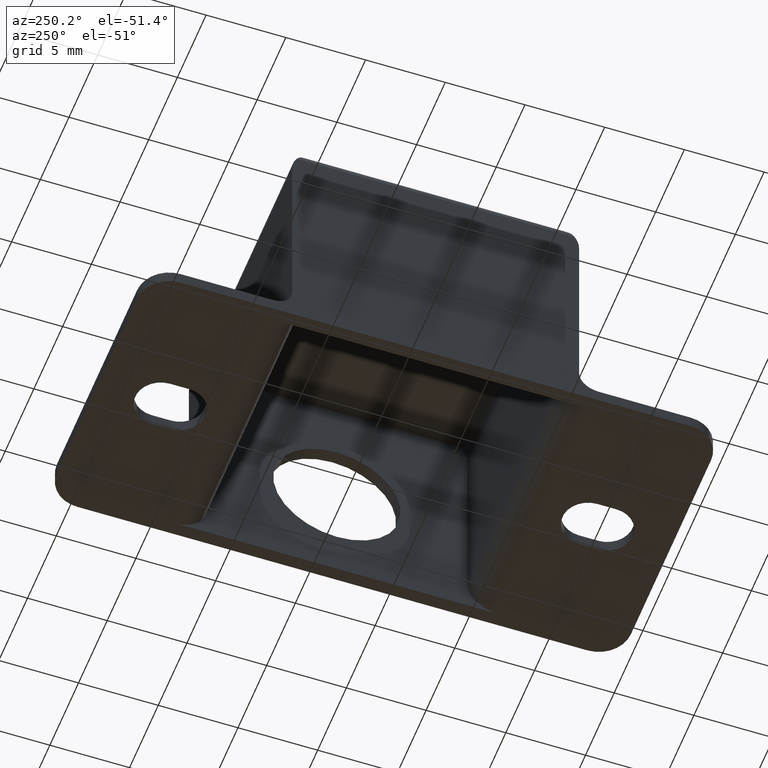
[diagram: clean part render]
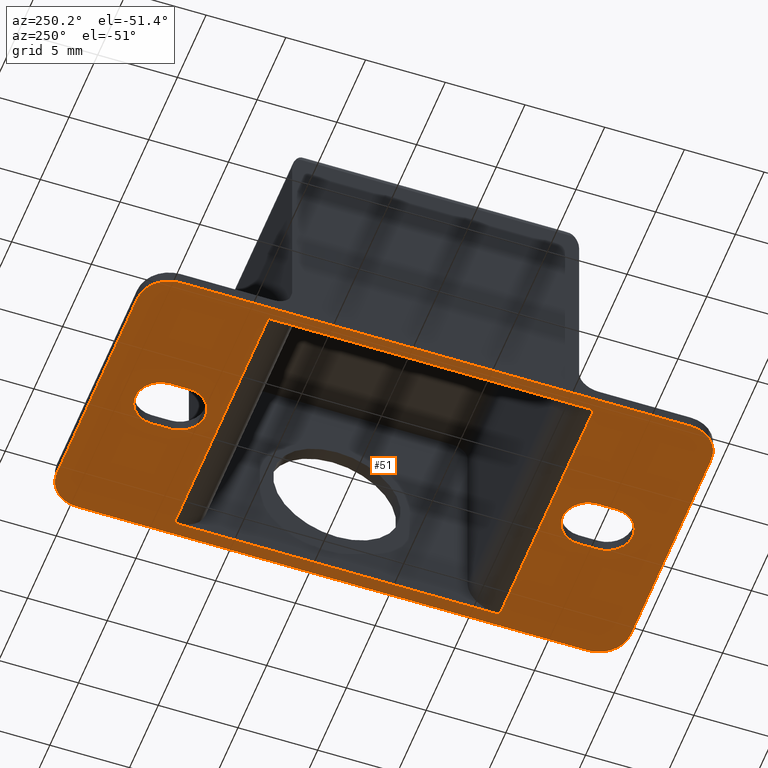
[diagram: same view with one face highlighted and labeled with its STEP entity id]
A machine part, auxiliary view. The second image highlights one B-rep face of the part: STEP entity #51.
In plain terms, the highlighted planar face has unit normal (0, 0, -1).
Its self-contained STEP definition (entity closure, byte-faithful):
#51=ADVANCED_FACE('',(#191,#192,#193,#194),#190,.T.);
#190=PLANE('',#535);
#191=FACE_OUTER_BOUND('',#536,.T.);
#192=FACE_BOUND('',#537,.T.);
#193=FACE_BOUND('',#538,.T.);
#194=FACE_BOUND('',#539,.T.);
#532=CARTESIAN_POINT('',(1.98000000000E+01,-8.20000000000E+00,-8.00000000000E-01));
#533=DIRECTION('',(0.00000000000E+00,0.00000000000E+00,-1.00000000000E+00));
#534=DIRECTION('',(-1.00000000000E+00,0.00000000000E+00,0.00000000000E+00));
#535=AXIS2_PLACEMENT_3D('',#532,#533,#534);
#536=EDGE_LOOP('',(#744,#745,#746,#747,#748,#749,#750,#751));
#537=EDGE_LOOP('',(#752,#753,#754,#755));
#538=EDGE_LOOP('',(#756,#757,#758,#759));
#539=EDGE_LOOP('',(#760,#761,#762,#763));
#744=ORIENTED_EDGE('',*,*,#944,.T.);
#745=ORIENTED_EDGE('',*,*,#921,.T.);
#746=ORIENTED_EDGE('',*,*,#928,.F.);
#747=ORIENTED_EDGE('',*,*,#911,.T.);
#748=ORIENTED_EDGE('',*,*,#943,.F.);
#749=ORIENTED_EDGE('',*,*,#915,.T.);
#750=ORIENTED_EDGE('',*,*,#936,.T.);
#751=ORIENTED_EDGE('',*,*,#917,.T.);
#752=ORIENTED_EDGE('',*,*,#945,.F.);
#753=ORIENTED_EDGE('',*,*,#946,.F.);
#754=ORIENTED_EDGE('',*,*,#947,.F.);
#755=ORIENTED_EDGE('',*,*,#948,.F.);
#756=ORIENTED_EDGE('',*,*,#949,.F.);
#757=ORIENTED_EDGE('',*,*,#950,.F.);
#758=ORIENTED_EDGE('',*,*,#951,.F.);
#759=ORIENTED_EDGE('',*,*,#952,.F.);
#760=ORIENTED_EDGE('',*,*,#953,.F.);
#761=ORIENTED_EDGE('',*,*,#954,.F.);
#762=ORIENTED_EDGE('',*,*,#955,.T.);
#763=ORIENTED_EDGE('',*,*,#956,.T.);
#911=EDGE_CURVE('',#1119,#1112,#1120,.T.);
#915=EDGE_CURVE('',#1147,#1140,#1148,.T.);
#917=EDGE_CURVE('',#1160,#1161,#1162,.T.);
#921=EDGE_CURVE('',#1188,#1189,#1190,.T.);
#928=EDGE_CURVE('',#1119,#1189,#1236,.T.);
#936=EDGE_CURVE('',#1140,#1160,#1288,.T.);
#943=EDGE_CURVE('',#1147,#1112,#1334,.T.);
#944=EDGE_CURVE('',#1161,#1188,#1340,.T.);
#945=EDGE_CURVE('',#1346,#1347,#1348,.T.);
#946=EDGE_CURVE('',#1354,#1346,#1355,.T.);
#947=EDGE_CURVE('',#1361,#1354,#1362,.T.);
#948=EDGE_CURVE('',#1347,#1361,#1368,.T.);
#949=EDGE_CURVE('',#1374,#1375,#1376,.T.);
#950=EDGE_CURVE('',#1382,#1374,#1383,.T.);
#951=EDGE_CURVE('',#1389,#1382,#1390,.T.);
#952=EDGE_CURVE('',#1375,#1389,#1396,.T.);
#953=EDGE_CURVE('',#1402,#1403,#1404,.T.);
#954=EDGE_CURVE('',#1410,#1402,#1411,.T.);
#955=EDGE_CURVE('',#1410,#1417,#1418,.T.);
#956=EDGE_CURVE('',#1417,#1403,#1424,.T.);
#1112=VERTEX_POINT('',#1817);
#1119=VERTEX_POINT('',#1821);
#1120=CIRCLE('',#1825,2.00000000000E+00);
#1140=VERTEX_POINT('',#1835);
#1147=VERTEX_POINT('',#1839);
#1148=CIRCLE('',#1843,2.00000000000E+00);
#1160=VERTEX_POINT('',#1847);
#1161=VERTEX_POINT('',#1848);
#1162=CIRCLE('',#1852,2.00000000000E+00);
#1188=VERTEX_POINT('',#1865);
#1189=VERTEX_POINT('',#1866);
#1190=CIRCLE('',#1870,2.00000000000E+00);
#1236=LINE('',#1895,#1896);
#1288=LINE('',#1925,#1926);
#1334=LINE('',#1953,#1954);
#1340=LINE('',#1956,#1957);
#1346=VERTEX_POINT('',#1959);
#1347=VERTEX_POINT('',#1960);
#1348=LINE('',#1961,#1962);
#1354=VERTEX_POINT('',#1964);
#1355=CIRCLE('',#1968,1.60000000000E+00);
#1361=VERTEX_POINT('',#1969);
#1362=LINE('',#1970,#1971);
#1368=CIRCLE('',#1976,1.60000000000E+00);
#1374=VERTEX_POINT('',#1977);
#1375=VERTEX_POINT('',#1978);
#1376=LINE('',#1979,#1980);
#1382=VERTEX_POINT('',#1982);
#1383=CIRCLE('',#1986,1.60000000000E+00);
#1389=VERTEX_POINT('',#1987);
#1390=LINE('',#1988,#1989);
#1396=CIRCLE('',#1994,1.60000000000E+00);
#1402=VERTEX_POINT('',#1995);
#1403=VERTEX_POINT('',#1996);
#1404=LINE('',#1997,#1998);
#1410=VERTEX_POINT('',#2000);
#1411=LINE('',#2001,#2002);
#1417=VERTEX_POINT('',#2004);
#1418=LINE('',#2005,#2006);
#1424=LINE('',#2008,#2009);
#1817=CARTESIAN_POINT('',(2.00000000000E+00,3.14000000000E+01,-8.00000000000E-01));
#1821=CARTESIAN_POINT('',(0.00000000000E+00,2.94000000000E+01,-8.00000000000E-01));
#1822=CARTESIAN_POINT('',(2.00000000000E+00,2.94000000000E+01,-8.00000000000E-01));
#1823=DIRECTION('',(0.00000000000E+00,0.00000000000E+00,-1.00000000000E+00));
#1824=DIRECTION('',(1.00000000000E+00,-0.00000000000E+00,-0.00000000000E+00));
#1825=AXIS2_PLACEMENT_3D('',#1822,#1823,#1824);
#1835=CARTESIAN_POINT('',(1.80000000000E+01,2.94000000000E+01,-8.00000000000E-01));
#1839=CARTESIAN_POINT('',(1.60000000000E+01,3.14000000000E+01,-8.00000000000E-01));
#1840=CARTESIAN_POINT('',(1.60000000000E+01,2.94000000000E+01,-8.00000000000E-01));
#1841=DIRECTION('',(0.00000000000E+00,0.00000000000E+00,-1.00000000000E+00));
#1842=DIRECTION('',(1.00000000000E+00,-0.00000000000E+00,-0.00000000000E+00));
#1843=AXIS2_PLACEMENT_3D('',#1840,#1841,#1842);
#1847=CARTESIAN_POINT('',(1.80000000000E+01,-2.60000000000E+00,-8.00000000000E-01));
#1848=CARTESIAN_POINT('',(1.60000000000E+01,-4.60000000000E+00,-8.00000000000E-01));
#1849=CARTESIAN_POINT('',(1.60000000000E+01,-2.60000000000E+00,-8.00000000000E-01));
#1850=DIRECTION('',(0.00000000000E+00,0.00000000000E+00,-1.00000000000E+00));
#1851=DIRECTION('',(1.00000000000E+00,-0.00000000000E+00,-0.00000000000E+00));
#1852=AXIS2_PLACEMENT_3D('',#1849,#1850,#1851);
#1865=CARTESIAN_POINT('',(2.00000000000E+00,-4.60000000000E+00,-8.00000000000E-01));
#1866=CARTESIAN_POINT('',(0.00000000000E+00,-2.60000000000E+00,-8.00000000000E-01));
#1867=CARTESIAN_POINT('',(2.00000000000E+00,-2.60000000000E+00,-8.00000000000E-01));
#1868=DIRECTION('',(0.00000000000E+00,0.00000000000E+00,-1.00000000000E+00));
#1869=DIRECTION('',(1.00000000000E+00,-0.00000000000E+00,-0.00000000000E+00));
#1870=AXIS2_PLACEMENT_3D('',#1867,#1868,#1869);
#1895=CARTESIAN_POINT('',(0.00000000000E+00,2.94000000000E+01,-8.00000000000E-01));
#1896=VECTOR('',#1897,3.20000000000E+01);
#1897=DIRECTION('',(0.00000000000E+00,-1.00000000000E+00,0.00000000000E+00));
#1925=CARTESIAN_POINT('',(1.80000000000E+01,2.94000000000E+01,-8.00000000000E-01));
#1926=VECTOR('',#1927,3.20000000000E+01);
#1927=DIRECTION('',(0.00000000000E+00,-1.00000000000E+00,0.00000000000E+00));
#1953=CARTESIAN_POINT('',(1.60000000000E+01,3.14000000000E+01,-8.00000000000E-01));
#1954=VECTOR('',#1955,1.40000000000E+01);
#1955=DIRECTION('',(-1.00000000000E+00,0.00000000000E+00,0.00000000000E+00));
#1956=CARTESIAN_POINT('',(1.60000000000E+01,-4.60000000000E+00,-8.00000000000E-01));
#1957=VECTOR('',#1958,1.40000000000E+01);
#1958=DIRECTION('',(-1.00000000000E+00,0.00000000000E+00,0.00000000000E+00));
#1959=CARTESIAN_POINT('',(1.06000000000E+01,6.00000000000E-01,-8.00000000000E-01));
#1960=CARTESIAN_POINT('',(1.06000000000E+01,-6.00000000000E-01,-8.00000000000E-01));
#1961=CARTESIAN_POINT('',(1.06000000000E+01,6.00000000000E-01,-8.00000000000E-01));
#1962=VECTOR('',#1963,1.20000000000E+00);
#1963=DIRECTION('',(0.00000000000E+00,-1.00000000000E+00,0.00000000000E+00));
#1964=CARTESIAN_POINT('',(7.40000000000E+00,6.00000000000E-01,-8.00000000000E-01));
#1965=CARTESIAN_POINT('',(9.00000000000E+00,6.00000000000E-01,-8.00000000000E-01));
#1966=DIRECTION('',(0.00000000000E+00,0.00000000000E+00,-1.00000000000E+00));
#1967=DIRECTION('',(-1.00000000000E+00,-0.00000000000E+00,-0.00000000000E+00));
#1968=AXIS2_PLACEMENT_3D('',#1965,#1966,#1967);
#1969=CARTESIAN_POINT('',(7.40000000000E+00,-6.00000000000E-01,-8.00000000000E-01));
#1970=CARTESIAN_POINT('',(7.40000000000E+00,-6.00000000000E-01,-8.00000000000E-01));
#1971=VECTOR('',#1972,1.20000000000E+00);
#1972=DIRECTION('',(0.00000000000E+00,1.00000000000E+00,0.00000000000E+00));
#1973=CARTESIAN_POINT('',(9.00000000000E+00,-6.00000000000E-01,-8.00000000000E-01));
#1974=DIRECTION('',(0.00000000000E+00,0.00000000000E+00,-1.00000000000E+00));
#1975=DIRECTION('',(-1.00000000000E+00,-0.00000000000E+00,-0.00000000000E+00));
#1976=AXIS2_PLACEMENT_3D('',#1973,#1974,#1975);
#1977=CARTESIAN_POINT('',(7.40000000000E+00,2.62000000000E+01,-8.00000000000E-01));
#1978=CARTESIAN_POINT('',(7.40000000000E+00,2.74000000000E+01,-8.00000000000E-01));
#1979=CARTESIAN_POINT('',(7.40000000000E+00,2.62000000000E+01,-8.00000000000E-01));
#1980=VECTOR('',#1981,1.20000000000E+00);
#1981=DIRECTION('',(0.00000000000E+00,1.00000000000E+00,0.00000000000E+00));
#1982=CARTESIAN_POINT('',(1.06000000000E+01,2.62000000000E+01,-8.00000000000E-01));
#1983=CARTESIAN_POINT('',(9.00000000000E+00,2.62000000000E+01,-8.00000000000E-01));
#1984=DIRECTION('',(0.00000000000E+00,0.00000000000E+00,-1.00000000000E+00));
#1985=DIRECTION('',(-1.00000000000E+00,-0.00000000000E+00,-0.00000000000E+00));
#1986=AXIS2_PLACEMENT_3D('',#1983,#1984,#1985);
#1987=CARTESIAN_POINT('',(1.06000000000E+01,2.74000000000E+01,-8.00000000000E-01));
#1988=CARTESIAN_POINT('',(1.06000000000E+01,2.74000000000E+01,-8.00000000000E-01));
#1989=VECTOR('',#1990,1.20000000000E+00);
#1990=DIRECTION('',(0.00000000000E+00,-1.00000000000E+00,0.00000000000E+00));
#1991=CARTESIAN_POINT('',(9.00000000000E+00,2.74000000000E+01,-8.00000000000E-01));
#1992=DIRECTION('',(0.00000000000E+00,0.00000000000E+00,-1.00000000000E+00));
#1993=DIRECTION('',(-1.00000000000E+00,-0.00000000000E+00,-0.00000000000E+00));
#1994=AXIS2_PLACEMENT_3D('',#1991,#1992,#1993);
#1995=CARTESIAN_POINT('',(1.72000000000E+01,3.20000000000E+00,-8.00000000000E-01));
#1996=CARTESIAN_POINT('',(8.00000000000E-01,3.20000000000E+00,-8.00000000000E-01));
#1997=CARTESIAN_POINT('',(1.72000000000E+01,3.20000000000E+00,-8.00000000000E-01));
#1998=VECTOR('',#1999,1.64000000000E+01);
#1999=DIRECTION('',(-1.00000000000E+00,0.00000000000E+00,0.00000000000E+00));
#2000=CARTESIAN_POINT('',(1.72000000000E+01,2.36000000000E+01,-8.00000000000E-01));
#2001=CARTESIAN_POINT('',(1.72000000000E+01,2.36000000000E+01,-8.00000000000E-01));
#2002=VECTOR('',#2003,2.04000000000E+01);
#2003=DIRECTION('',(0.00000000000E+00,-1.00000000000E+00,0.00000000000E+00));
#2004=CARTESIAN_POINT('',(8.00000000000E-01,2.36000000000E+01,-8.00000000000E-01));
#2005=CARTESIAN_POINT('',(1.72000000000E+01,2.36000000000E+01,-8.00000000000E-01));
#2006=VECTOR('',#2007,1.64000000000E+01);
#2007=DIRECTION('',(-1.00000000000E+00,0.00000000000E+00,0.00000000000E+00));
#2008=CARTESIAN_POINT('',(8.00000000000E-01,2.36000000000E+01,-8.00000000000E-01));
#2009=VECTOR('',#2010,2.04000000000E+01);
#2010=DIRECTION('',(0.00000000000E+00,-1.00000000000E+00,0.00000000000E+00));